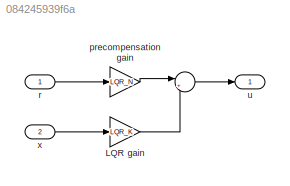
MODEL slx_084245939f6a
KIND model
CONFIG AbsTol = auto
CONFIG FixedStep = auto
CONFIG MaxStep = auto
CONFIG MinStep = auto
CONFIG RelTol = 1e-3
CONFIG SampleTimeConstraint = Unconstrained
CONFIG Solver = VariableStepAuto
CONFIG SolverMode = Auto
CONFIG SolverName = VariableStepAuto
CONFIG StartTime = 0.0
CONFIG StopTime = 10.0
BLOCK [Sum]  
  IconShape = round
  InputSameDT = off
  Inputs = |+-
  OutDataTypeStr = Inherit: Inherit via internal rule
  Ports = [2, 1]
  SaturateOnIntegerOverflow = off
BLOCK [Gain] LQR gain
  Gain = LQR_K
  Multiplication = Matrix(K*u)
  OutDataTypeStr = Inherit: Inherit via internal rule
  ParamDataTypeStr = Inherit: Inherit via internal rule
  SaturateOnIntegerOverflow = off
BLOCK [Gain] precompensation gain
  Gain = LQR_N
  Multiplication = Matrix(K*u)
  OutDataTypeStr = Inherit: Inherit via internal rule
  ParamDataTypeStr = Inherit: Inherit via internal rule
  SaturateOnIntegerOverflow = off
BLOCK [Inport] r
  IconDisplay = Port number
  PortDimensions = 1
BLOCK [Outport] u
  IconDisplay = Port number
  PortDimensions = 1
BLOCK [Inport] x
  IconDisplay = Port number
  Port = 2
  PortDimensions = 3
LINE  :1 -> u:1
LINE LQR gain:1 ->  :2
LINE precompensation gain:1 ->  :1
LINE r:1 -> precompensation gain:1
LINE x:1 -> LQR gain:1
